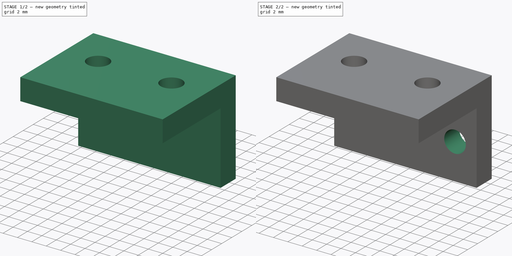
[diagram: build sequence overview — one tinted view per stage of 2, left to right]
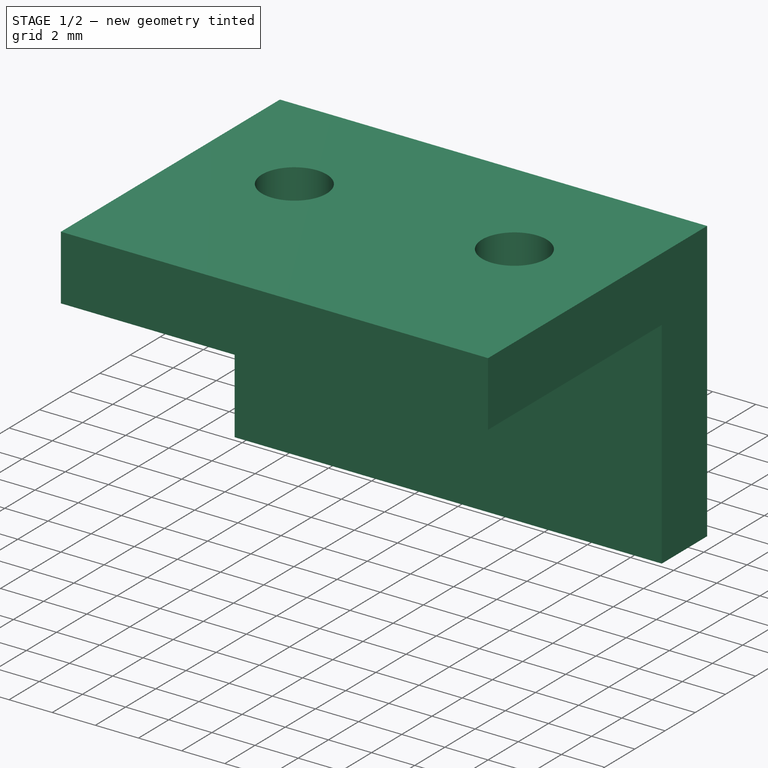
[diagram: stage 1 of 2 — iso view after this stage's code; geometry added in this stage tinted green]
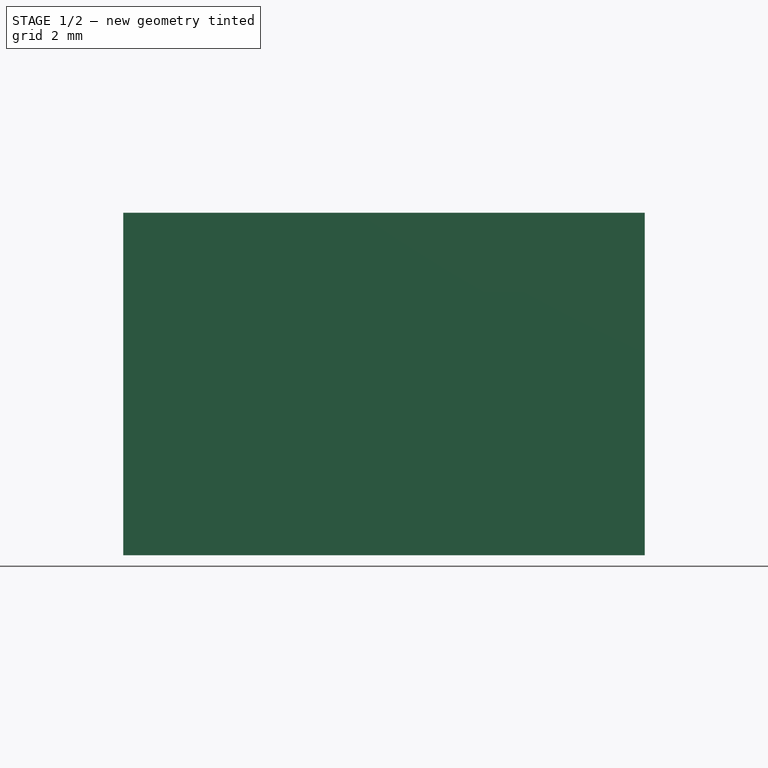
[diagram: stage 1 of 2 — front view after this stage's code; geometry added in this stage tinted green]
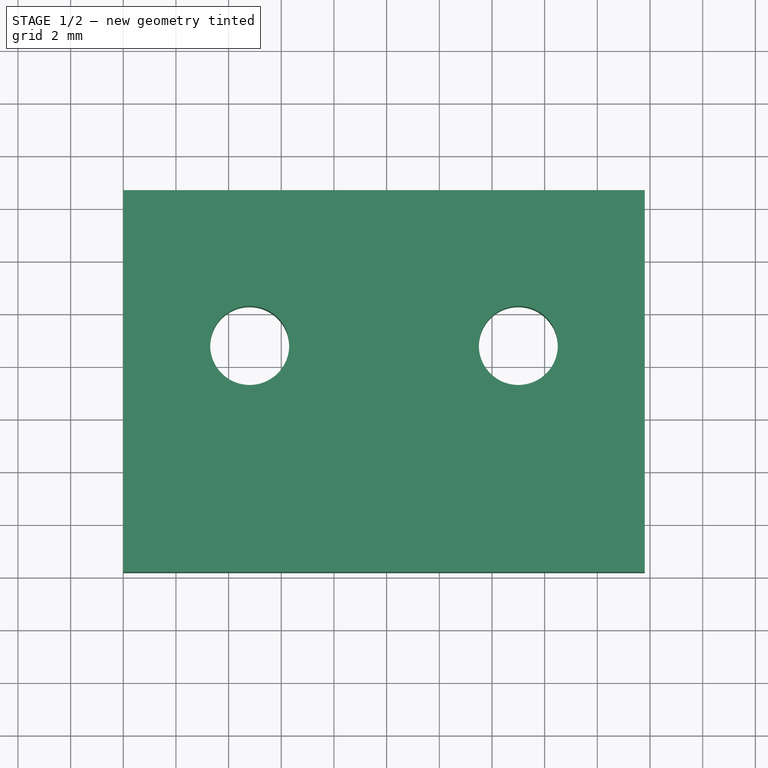
[diagram: stage 1 of 2 — top view after this stage's code; geometry added in this stage tinted green]
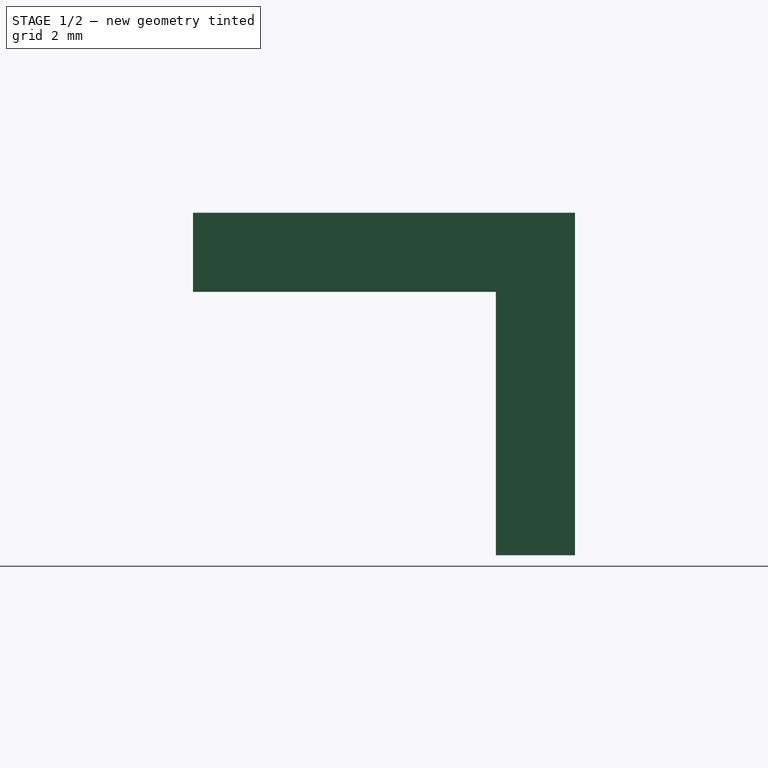
[diagram: stage 1 of 2 — right view after this stage's code; geometry added in this stage tinted green]
FCSTD DOCUMENT  (FreeCAD 0.16R6707 (Git))
Label: support_fc_vertical
License: All rights reserved
LicenseURL: http://en.wikipedia.org/wiki/All_rights_reserved
objects: Sketcher::SketchObject×3, PartDesign::Pad×2, PartDesign::Pocket×1
note: 9 computed .brp shape members not serialized (recipe doc carries the construction recipe); baked Part::Feature solids carry a one-line shape summary decoded from their .brp

FEATURE [Sketcher::SketchObject] Sketch
  sketch-geometry (7):
    g0: LineSegment StartX=0 StartY=0 StartZ=0 EndX=19.8 EndY=0 EndZ=0
    g1: LineSegment StartX=19.8 StartY=0 StartZ=0 EndX=19.8 EndY=14.5 EndZ=0
    g2: LineSegment StartX=19.8 StartY=14.5 StartZ=0 EndX=0 EndY=14.5 EndZ=0
    g3: LineSegment StartX=0 StartY=14.5 StartZ=0 EndX=0 EndY=0 EndZ=0
    g4: GeomPoint [constr] X=0 Y=11.5 Z=0
    g5: Circle CenterX=4.8 CenterY=8.6 CenterZ=0 NormalX=0 NormalY=0 NormalZ=1 Radius=1.5
    g6: Circle CenterX=15 CenterY=8.6 CenterZ=0 NormalX=0 NormalY=0 NormalZ=1 Radius=1.5
  constraints (19):
    c: Coincident(g0,g1)
    c: Coincident(g1,g2)
    c: Coincident(g2,g3)
    c: Coincident(g3,g0)
    c: Horizontal(g0)
    c: Horizontal(g2)
    c: Vertical(g1)
    c: Vertical(g3)
    c: Coincident(g0,g-1)
    c: Distance(g3) = 14.5
    c: PointOnObject(g4,g3)
    c: DistanceY(g4) = 11.5
    c: Distance(g2) = 19.8
    c: DistanceY(g6,g5) = 0
    c: DistanceX(g5,g6) = 10.2
    c: DistanceX(g5) = 4.8
    c: DistanceY(g5,g4) = 2.9
    c: Radius(g5) = 1.5
    c: Equal(g5,g6)
FEATURE [PartDesign::Pad] Pad
  Length = 3
  Length2 = 100
  Sketch = -> Sketch
  Type = 0
FEATURE [Sketcher::SketchObject] Sketch001
  Placement = pos=(0,0,0) rot=(1,0,0;3.14159rad)
  Support = -> Pad [Face7]
  sketch-geometry (4):
    g0: LineSegment StartX=0 StartY=-11.5 StartZ=0 EndX=19.8 EndY=-11.5 EndZ=0
    g1: LineSegment StartX=19.8 StartY=-11.5 StartZ=0 EndX=19.8 EndY=-14.5 EndZ=0
    g2: LineSegment StartX=19.8 StartY=-14.5 StartZ=0 EndX=0 EndY=-14.5 EndZ=0
    g3: LineSegment StartX=0 StartY=-14.5 StartZ=0 EndX=0 EndY=-11.5 EndZ=0
  constraints (12):
    c: Coincident(g0,g1)
    c: Coincident(g1,g2)
    c: Coincident(g2,g3)
    c: Coincident(g3,g0)
    c: Horizontal(g0)
    c: Horizontal(g2)
    c: Vertical(g1)
    c: Vertical(g3)
    c: PointOnObject(g0,g-2)
    c: Distance(g2) = 19.8
    c: DistanceY(g0) = -11.5
    c: Distance(g3) = 3
FEATURE [PartDesign::Pad] Pad001
  Length = 10
  Length2 = 100
  Sketch = -> Sketch001
  Type = 0
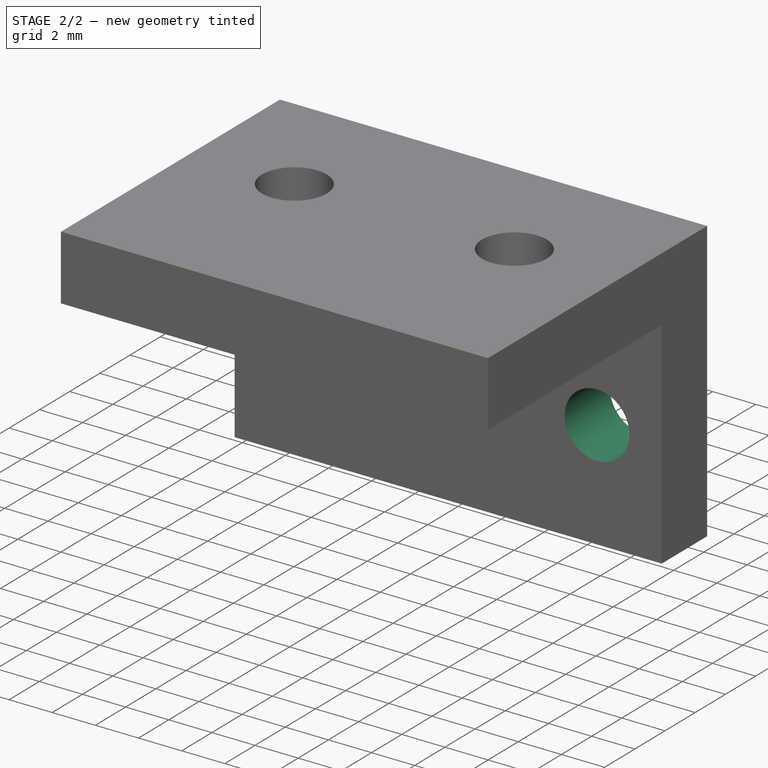
[diagram: stage 2 of 2 — iso view after this stage's code; geometry added in this stage tinted green]
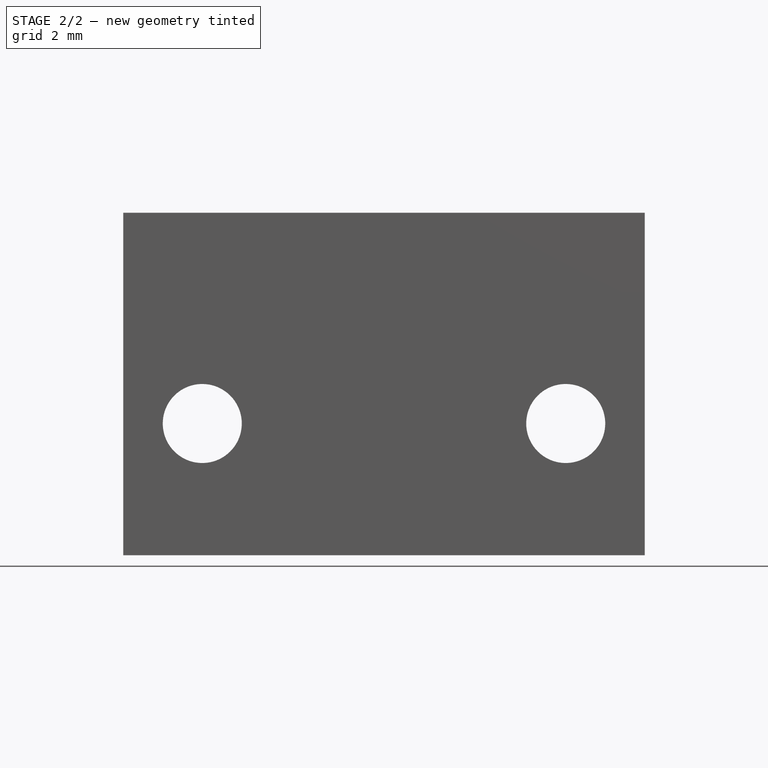
[diagram: stage 2 of 2 — front view after this stage's code; geometry added in this stage tinted green]
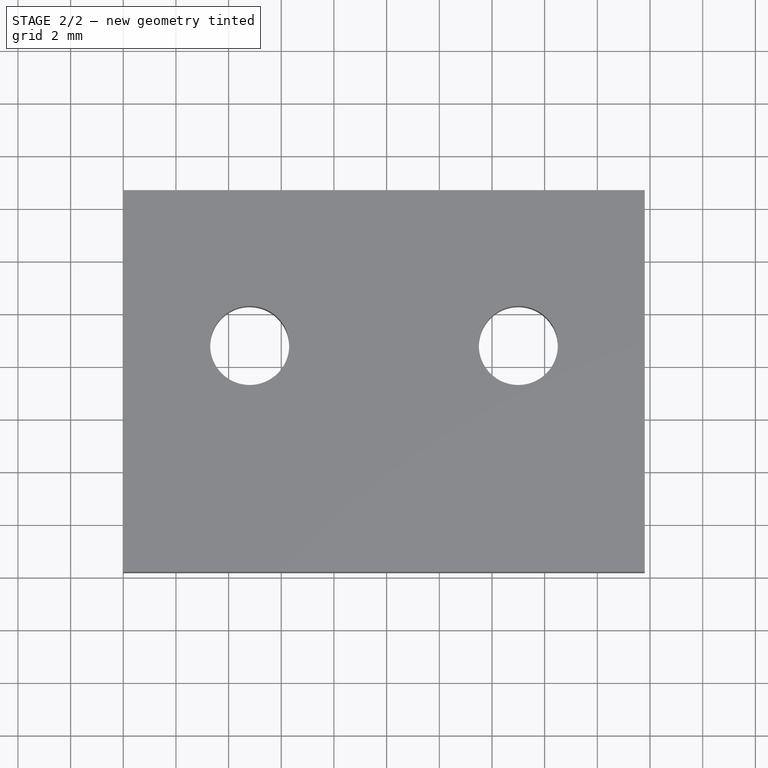
[diagram: stage 2 of 2 — top view after this stage's code; geometry added in this stage tinted green]
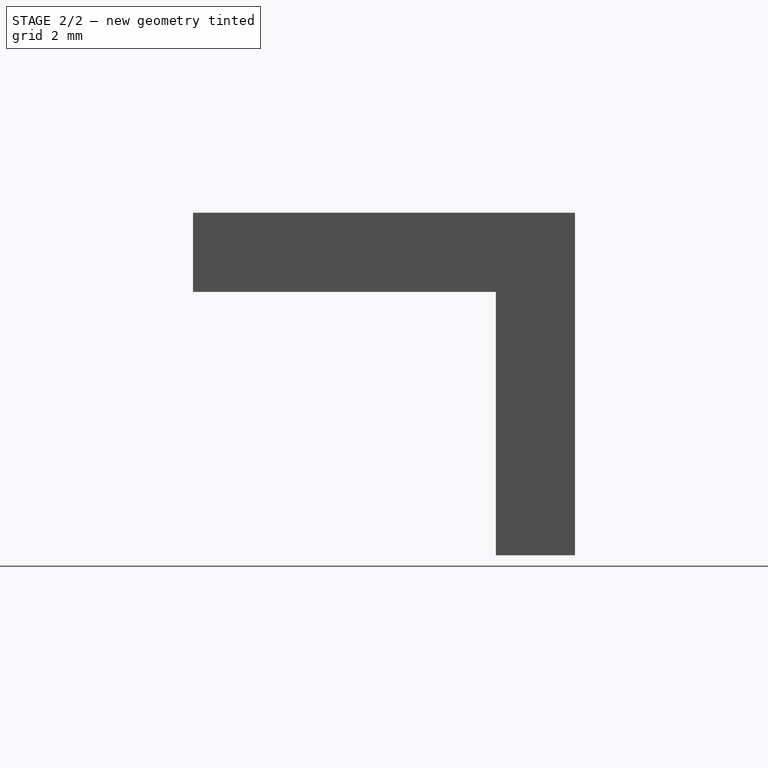
[diagram: stage 2 of 2 — right view after this stage's code; geometry added in this stage tinted green]
FEATURE [Sketcher::SketchObject] Sketch002
  Placement = pos=(0,11.5,0) rot=(1,0,0;1.5708rad)
  Support = -> Pad001 [Face9]
  sketch-geometry (3):
    g0: Circle CenterX=3 CenterY=-5 CenterZ=0 NormalX=0 NormalY=0 NormalZ=1 Radius=1.5
    g1: Circle CenterX=16.8 CenterY=-5 CenterZ=0 NormalX=0 NormalY=0 NormalZ=1 Radius=1.5
    g2: GeomPoint [constr] X=19.8 Y=0 Z=0
  constraints (8):
    c: Radius(g0) = 1.5
    c: Equal(g0,g1)
    c: DistanceY(g0,g1) = 0
    c: DistanceX(g0) = 3
    c: DistanceX(g2) = 19.8
    c: DistanceY(g2) = 0
    c: DistanceX(g1,g2) = 3
    c: DistanceY(g1,g2) = 5
FEATURE [PartDesign::Pocket] Pocket
  Length = 5
  Sketch = -> Sketch002
  Type = 1
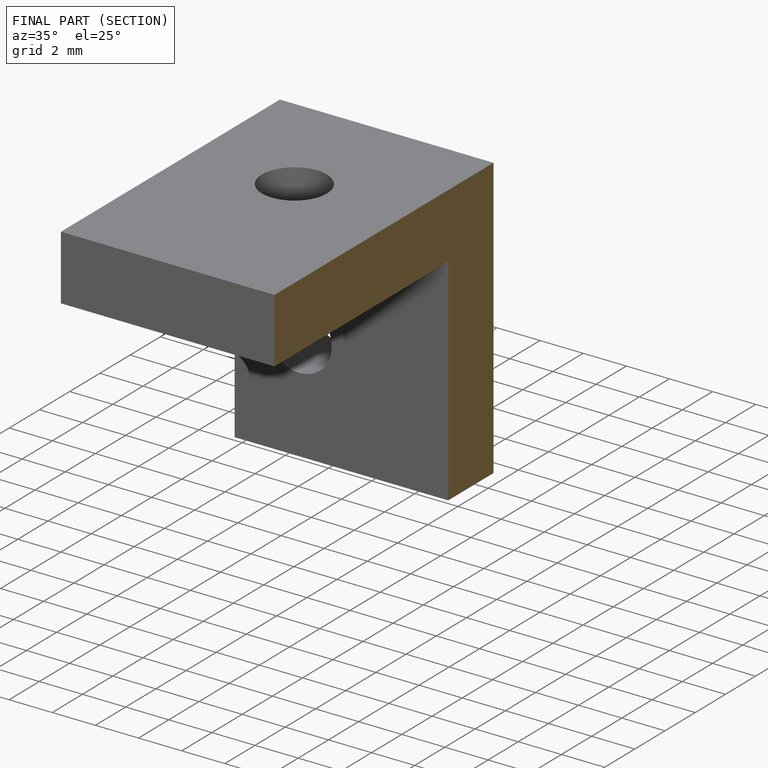
[diagram: finished part — half-section view (interior)]
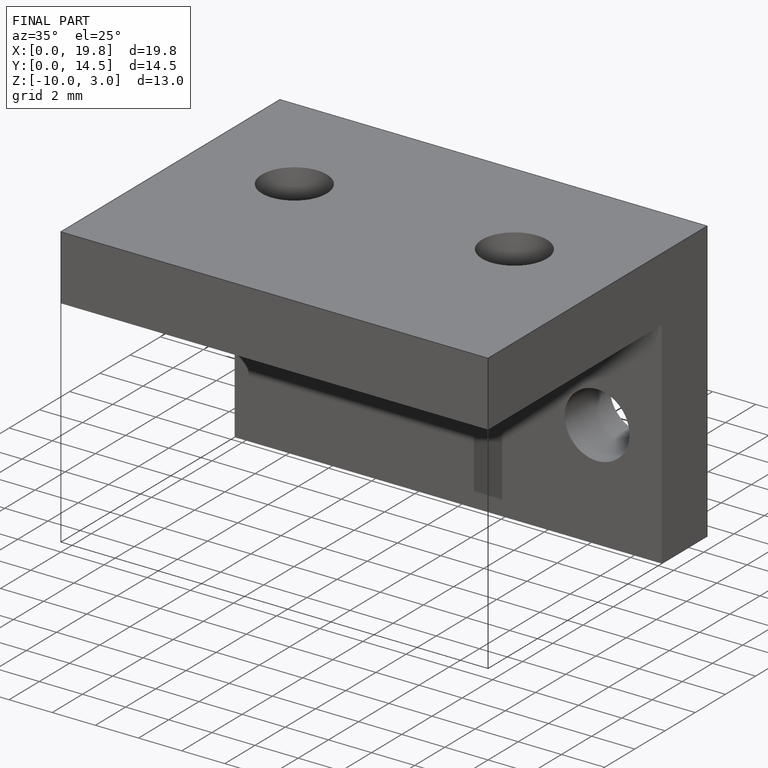
[diagram: finished part — iso view with bounding-box wireframe]
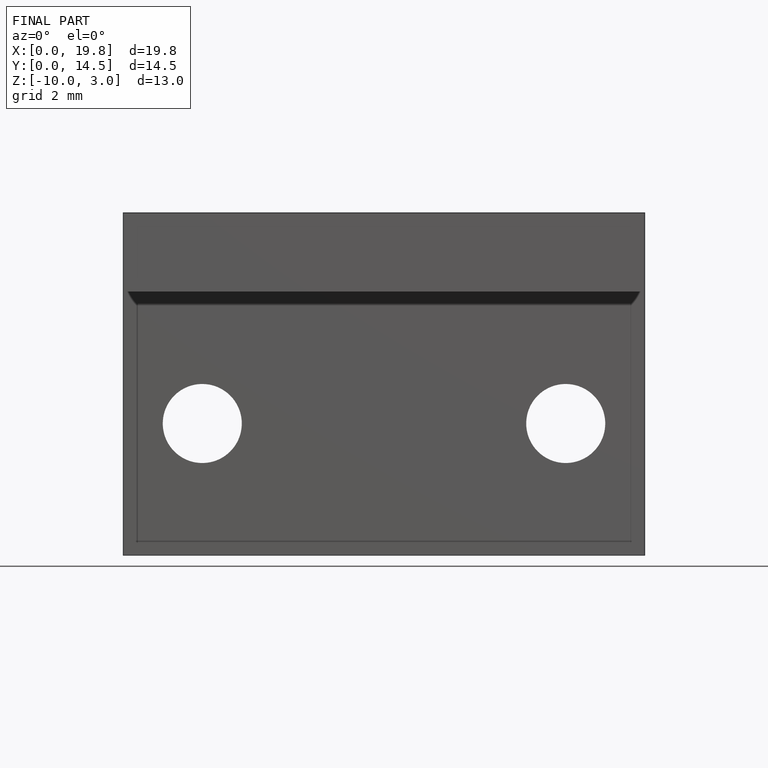
[diagram: finished part — front view with bounding-box wireframe]
